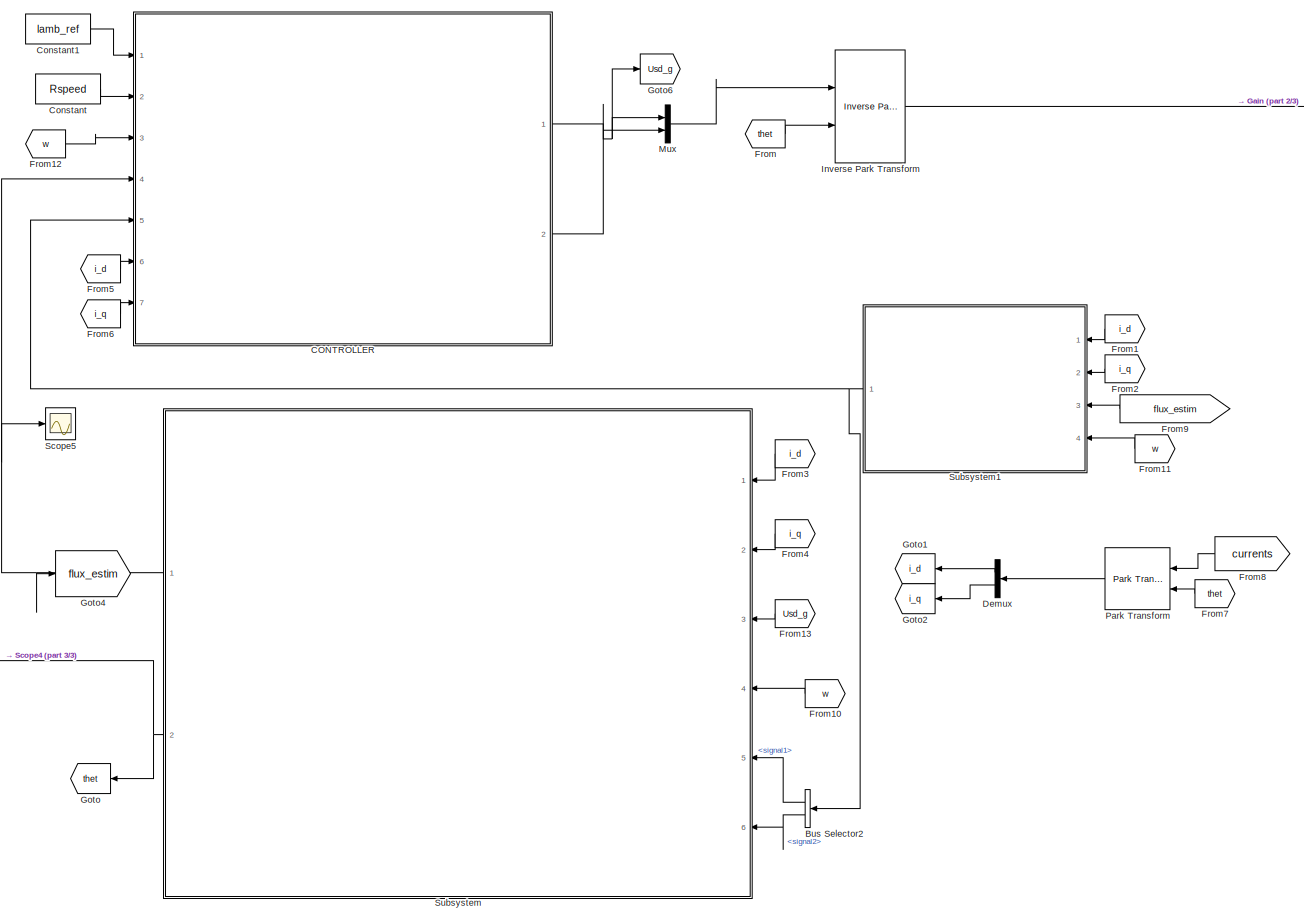
[diagram: root canvas - part 1/3, left side, full height]
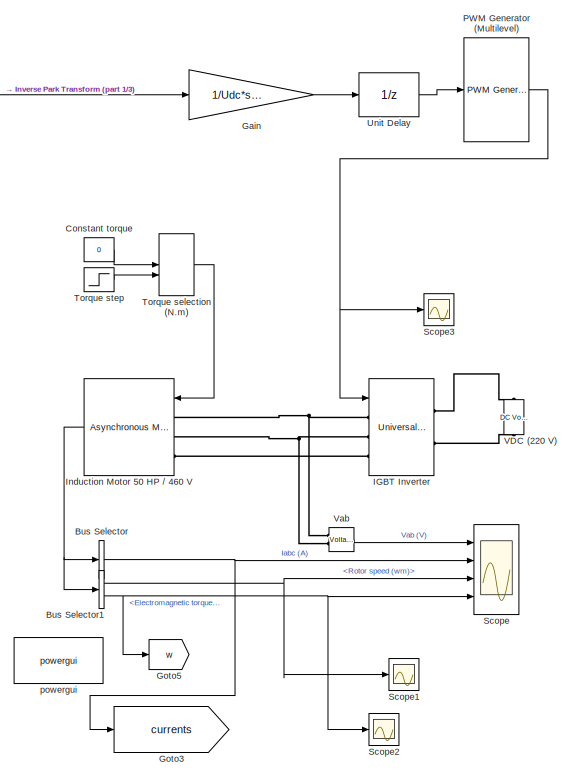
[diagram: root canvas - part 2/3, right side, full height]
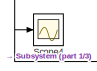
[diagram: root canvas - part 3/3, bottom left region]
MODEL slx_e085732e2093
KIND model
CONFIG AbsTol = auto
CONFIG EnableMultiTasking = off
CONFIG FixedStep = auto
CONFIG MaxStep = auto
CONFIG MinStep = auto
CONFIG RelTol = 1e-3
CONFIG SampleTimeConstraint = Unconstrained
CONFIG SolverName = VariableStepAuto
CONFIG StartTime = 0.0
CONFIG StopTime = 10
BLOCK [BusSelector] Bus Selector
  OutputAsBus = on
  OutputSignals = Stator measurements.Stator current is_a (A),Stator measurements.Stator current is_b (A),Stator measurements.Stator current is_c (A)
  Ports = [1, 1]
BLOCK [BusSelector] Bus Selector1
  OutputSignals = Mechanical.Rotor speed (wm),Mechanical.Electromagnetic torque Te (N*m)
  Ports = [1, 2]
BLOCK [BusSelector] Bus Selector2
  OutputSignals = signal1,signal2
  Ports = [1, 2]
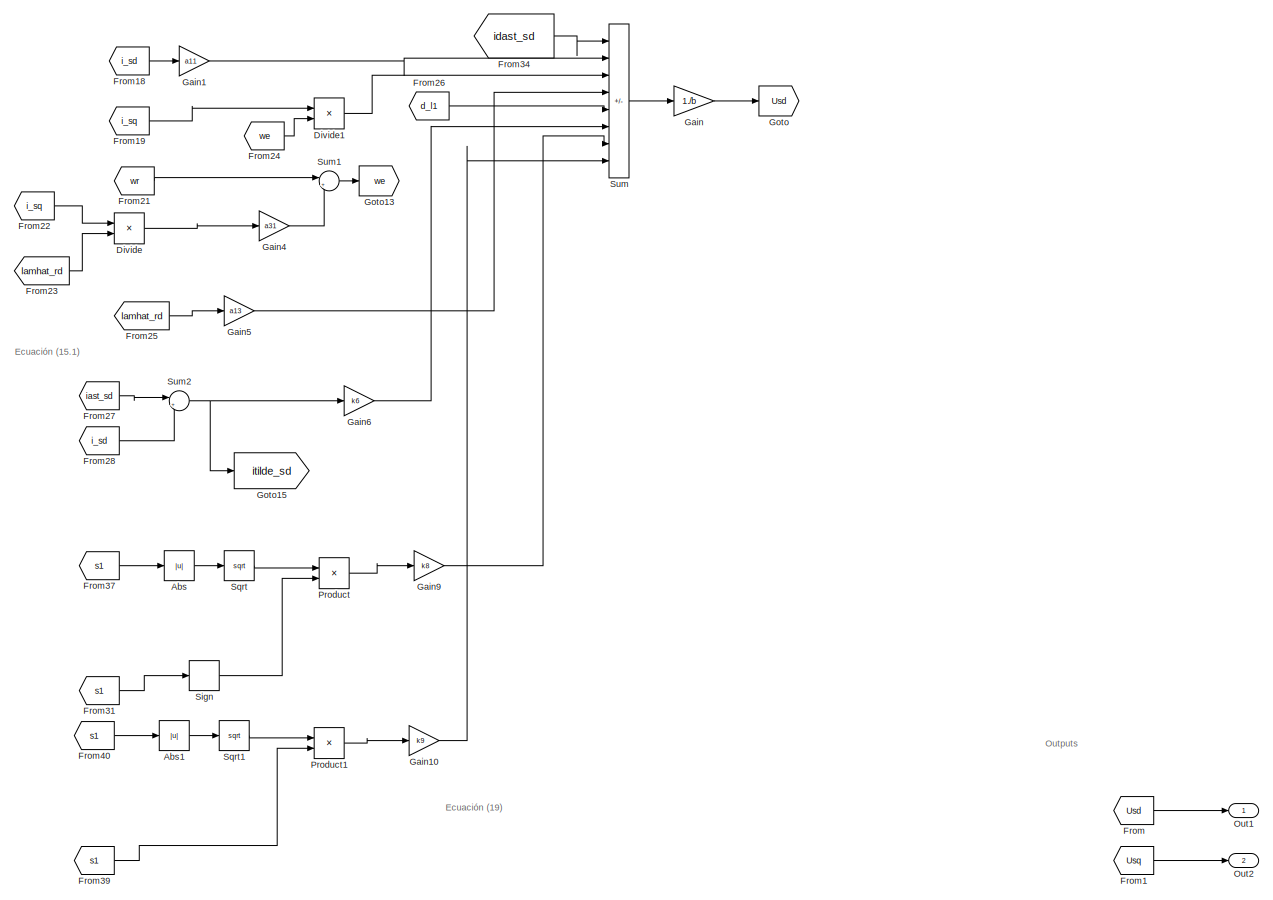
[diagram: CONTROLLER - part 1/4, top right region]
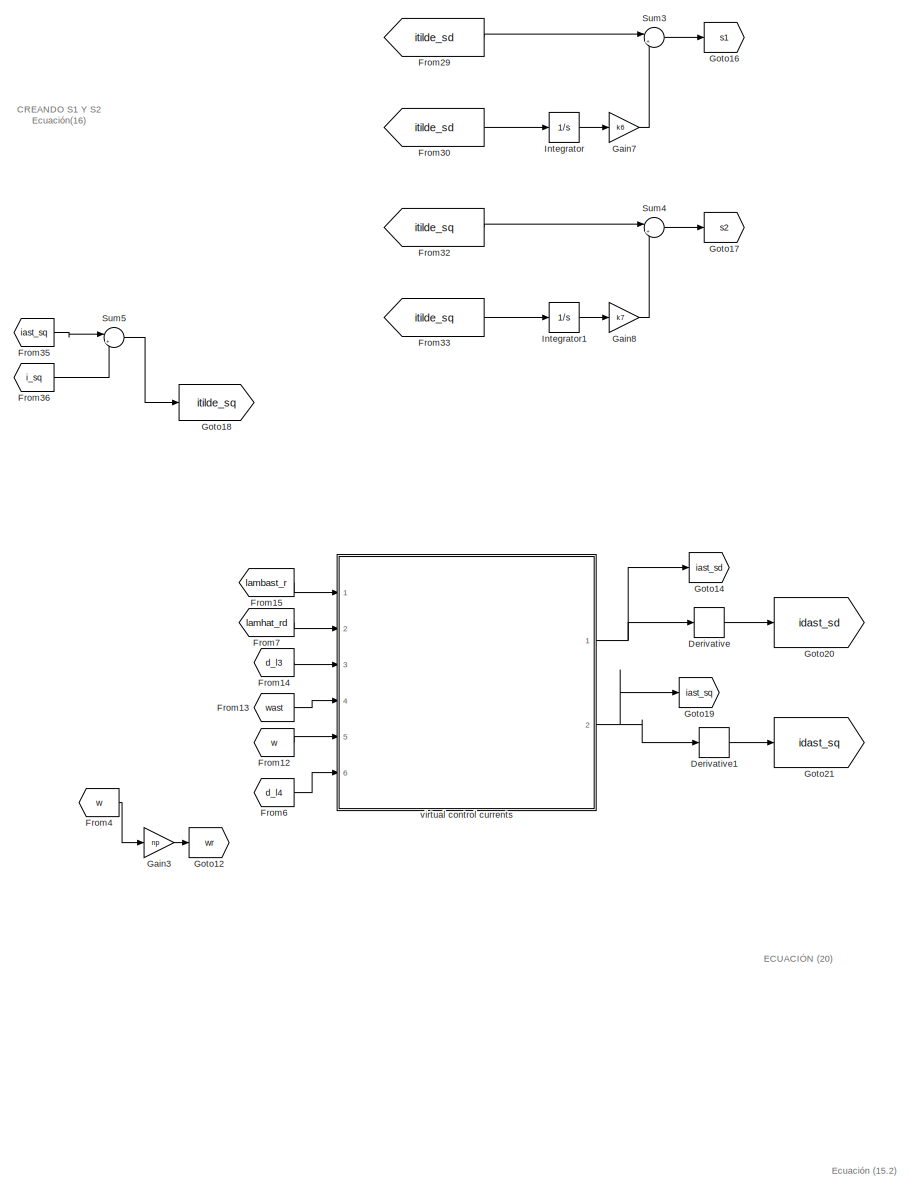
[diagram: CONTROLLER - part 2/4, central region]
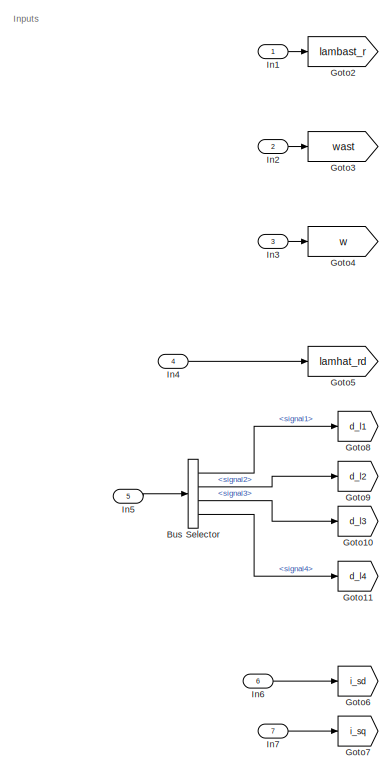
[diagram: CONTROLLER - part 3/4, middle left region]
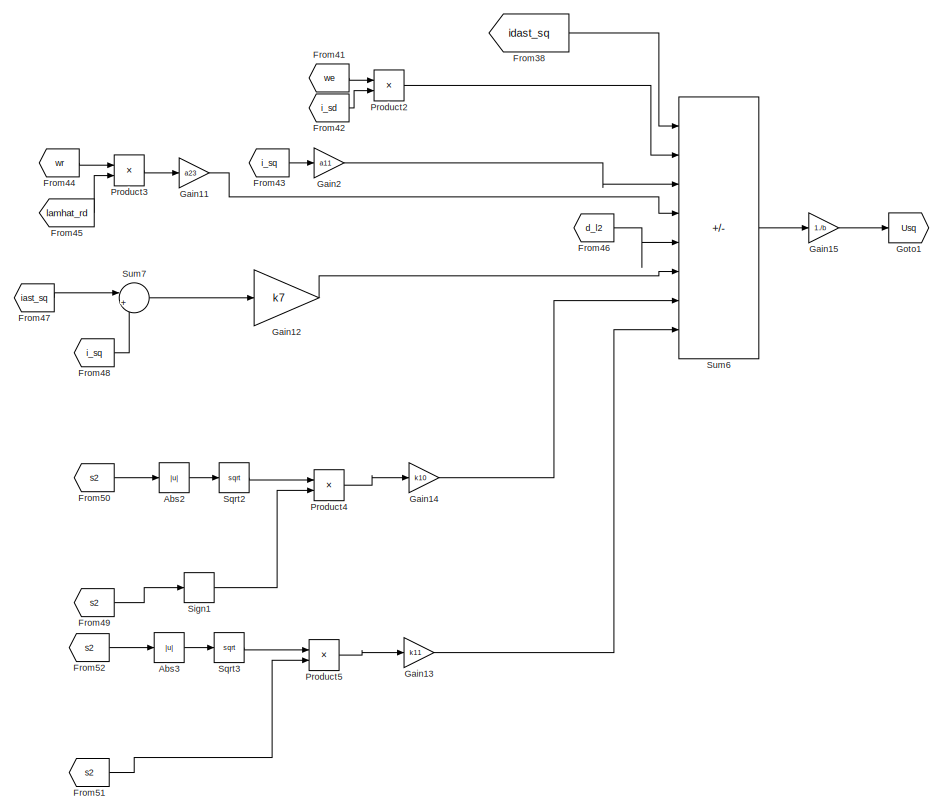
[diagram: CONTROLLER - part 4/4, bottom right region]
BLOCK [SubSystem] CONTROLLER
  Ports = [7, 2]
  RequestExecContextInheritance = off
  ShowPortLabels = none
BLOCK [Abs] CONTROLLER/Abs
  SaturateOnIntegerOverflow = off
BLOCK [Abs] CONTROLLER/Abs1
  SaturateOnIntegerOverflow = off
BLOCK [Abs] CONTROLLER/Abs2
  SaturateOnIntegerOverflow = off
BLOCK [Abs] CONTROLLER/Abs3
  SaturateOnIntegerOverflow = off
BLOCK [BusSelector] CONTROLLER/Bus Selector
  OutputSignals = signal1,signal2,signal3,signal4
  Ports = [1, 4]
BLOCK [Derivative] CONTROLLER/Derivative
BLOCK [Derivative] CONTROLLER/Derivative1
BLOCK [Product] CONTROLLER/Divide
  Inputs = */
  Ports = [2, 1]
BLOCK [Product] CONTROLLER/Divide1
  Inputs = **
  Ports = [2, 1]
BLOCK [From] CONTROLLER/From
  GotoTag = Usd
BLOCK [From] CONTROLLER/From1
  GotoTag = Usq
BLOCK [From] CONTROLLER/From12
  GotoTag = w
BLOCK [From] CONTROLLER/From13
  GotoTag = wast
BLOCK [From] CONTROLLER/From14
  GotoTag = d_l3
BLOCK [From] CONTROLLER/From15
  GotoTag = lambast_r
BLOCK [From] CONTROLLER/From18
  GotoTag = i_sd
BLOCK [From] CONTROLLER/From19
  GotoTag = i_sq
BLOCK [From] CONTROLLER/From21
  GotoTag = wr
BLOCK [From] CONTROLLER/From22
  GotoTag = i_sq
BLOCK [From] CONTROLLER/From23
  GotoTag = lamhat_rd
BLOCK [From] CONTROLLER/From24
  GotoTag = we
BLOCK [From] CONTROLLER/From25
  GotoTag = lamhat_rd
BLOCK [From] CONTROLLER/From26
  GotoTag = d_l1
BLOCK [From] CONTROLLER/From27
  GotoTag = iast_sd
BLOCK [From] CONTROLLER/From28
  GotoTag = i_sd
BLOCK [From] CONTROLLER/From29
  GotoTag = itilde_sd
BLOCK [From] CONTROLLER/From30
  GotoTag = itilde_sd
BLOCK [From] CONTROLLER/From31
  GotoTag = s1
BLOCK [From] CONTROLLER/From32
  GotoTag = itilde_sq
BLOCK [From] CONTROLLER/From33
  GotoTag = itilde_sq
BLOCK [From] CONTROLLER/From34
  GotoTag = idast_sd
BLOCK [From] CONTROLLER/From35
  GotoTag = iast_sq
BLOCK [From] CONTROLLER/From36
  GotoTag = i_sq
BLOCK [From] CONTROLLER/From37
  GotoTag = s1
BLOCK [From] CONTROLLER/From38
  GotoTag = idast_sq
BLOCK [From] CONTROLLER/From39
  GotoTag = s1
BLOCK [From] CONTROLLER/From4
  GotoTag = w
BLOCK [From] CONTROLLER/From40
  GotoTag = s1
BLOCK [From] CONTROLLER/From41
  GotoTag = we
BLOCK [From] CONTROLLER/From42
  GotoTag = i_sd
BLOCK [From] CONTROLLER/From43
  GotoTag = i_sq
BLOCK [From] CONTROLLER/From44
  GotoTag = wr
BLOCK [From] CONTROLLER/From45
  GotoTag = lamhat_rd
BLOCK [From] CONTROLLER/From46
  GotoTag = d_l2
BLOCK [From] CONTROLLER/From47
  GotoTag = iast_sq
BLOCK [From] CONTROLLER/From48
  GotoTag = i_sq
BLOCK [From] CONTROLLER/From49
  GotoTag = s2
  NameLocation = top
BLOCK [From] CONTROLLER/From50
  GotoTag = s2
BLOCK [From] CONTROLLER/From51
  GotoTag = s2
BLOCK [From] CONTROLLER/From52
  GotoTag = s2
BLOCK [From] CONTROLLER/From6
  GotoTag = d_l4
BLOCK [From] CONTROLLER/From7
  GotoTag = lamhat_rd
BLOCK [Gain] CONTROLLER/Gain
  Gain = 1./b
BLOCK [Gain] CONTROLLER/Gain1
  Gain = a11
BLOCK [Gain] CONTROLLER/Gain10
  Gain = k9
BLOCK [Gain] CONTROLLER/Gain11
  Gain = a23
BLOCK [Gain] CONTROLLER/Gain12
  Gain = k7
BLOCK [Gain] CONTROLLER/Gain13
  Gain = k11
BLOCK [Gain] CONTROLLER/Gain14
  Gain = k10
BLOCK [Gain] CONTROLLER/Gain15
  Gain = 1./b
BLOCK [Gain] CONTROLLER/Gain2
  Gain = a11
BLOCK [Gain] CONTROLLER/Gain3
  Gain = np
BLOCK [Gain] CONTROLLER/Gain4
  Gain = a31
BLOCK [Gain] CONTROLLER/Gain5
  Gain = a13
BLOCK [Gain] CONTROLLER/Gain6
  Gain = k6
BLOCK [Gain] CONTROLLER/Gain7
  Gain = k6
BLOCK [Gain] CONTROLLER/Gain8
  Gain = k7
BLOCK [Gain] CONTROLLER/Gain9
  Gain = k8
BLOCK [Goto] CONTROLLER/Goto
  GotoTag = Usd
BLOCK [Goto] CONTROLLER/Goto1
  GotoTag = Usq
BLOCK [Goto] CONTROLLER/Goto10
  GotoTag = d_l3
BLOCK [Goto] CONTROLLER/Goto11
  GotoTag = d_l4
BLOCK [Goto] CONTROLLER/Goto12
  GotoTag = wr
BLOCK [Goto] CONTROLLER/Goto13
  GotoTag = we
BLOCK [Goto] CONTROLLER/Goto14
  GotoTag = iast_sd
BLOCK [Goto] CONTROLLER/Goto15
  GotoTag = itilde_sd
BLOCK [Goto] CONTROLLER/Goto16
  GotoTag = s1
BLOCK [Goto] CONTROLLER/Goto17
  GotoTag = s2
BLOCK [Goto] CONTROLLER/Goto18
  GotoTag = itilde_sq
BLOCK [Goto] CONTROLLER/Goto19
  GotoTag = iast_sq
BLOCK [Goto] CONTROLLER/Goto2
  GotoTag = lambast_r
BLOCK [Goto] CONTROLLER/Goto20
  GotoTag = idast_sd
BLOCK [Goto] CONTROLLER/Goto21
  GotoTag = idast_sq
BLOCK [Goto] CONTROLLER/Goto3
  GotoTag = wast
BLOCK [Goto] CONTROLLER/Goto4
  GotoTag = w
BLOCK [Goto] CONTROLLER/Goto5
  GotoTag = lamhat_rd
BLOCK [Goto] CONTROLLER/Goto6
  GotoTag = i_sd
BLOCK [Goto] CONTROLLER/Goto7
  GotoTag = i_sq
BLOCK [Goto] CONTROLLER/Goto8
  GotoTag = d_l1
BLOCK [Goto] CONTROLLER/Goto9
  GotoTag = d_l2
BLOCK [Inport] CONTROLLER/In1
BLOCK [Inport] CONTROLLER/In2
  Port = 2
BLOCK [Inport] CONTROLLER/In3
  Port = 3
BLOCK [Inport] CONTROLLER/In4
  Port = 4
BLOCK [Inport] CONTROLLER/In5
  Port = 5
BLOCK [Inport] CONTROLLER/In6
  Port = 6
BLOCK [Inport] CONTROLLER/In7
  Port = 7
BLOCK [Integrator] CONTROLLER/Integrator
  Ports = [1, 1]
BLOCK [Integrator] CONTROLLER/Integrator1
  Ports = [1, 1]
BLOCK [Outport] CONTROLLER/Out1
BLOCK [Outport] CONTROLLER/Out2
  Port = 2
BLOCK [Product] CONTROLLER/Product
  Ports = [2, 1]
BLOCK [Product] CONTROLLER/Product1
  Ports = [2, 1]
BLOCK [Product] CONTROLLER/Product2
  Ports = [2, 1]
BLOCK [Product] CONTROLLER/Product3
  Ports = [2, 1]
BLOCK [Product] CONTROLLER/Product4
  Ports = [2, 1]
BLOCK [Product] CONTROLLER/Product5
  Ports = [2, 1]
BLOCK [Signum] CONTROLLER/Sign
BLOCK [Signum] CONTROLLER/Sign1
BLOCK [Sqrt] CONTROLLER/Sqrt
BLOCK [Sqrt] CONTROLLER/Sqrt1
BLOCK [Sqrt] CONTROLLER/Sqrt2
BLOCK [Sqrt] CONTROLLER/Sqrt3
BLOCK [Sum] CONTROLLER/Sum
  IconShape = rectangular
  Inputs = |+|----|+++|
  Ports = [8, 1]
BLOCK [Sum] CONTROLLER/Sum1
  Inputs = |++
  Ports = [2, 1]
BLOCK [Sum] CONTROLLER/Sum2
  Inputs = |+-
  Ports = [2, 1]
BLOCK [Sum] CONTROLLER/Sum3
  Inputs = |++
  Ports = [2, 1]
BLOCK [Sum] CONTROLLER/Sum4
  Inputs = |++
  Ports = [2, 1]
BLOCK [Sum] CONTROLLER/Sum5
  Inputs = |+-
  Ports = [2, 1]
BLOCK [Sum] CONTROLLER/Sum6
  IconShape = rectangular
  Inputs = |++|-|+|-|+++
  Ports = [8, 1]
BLOCK [Sum] CONTROLLER/Sum7
  Inputs = |+-
  Ports = [2, 1]
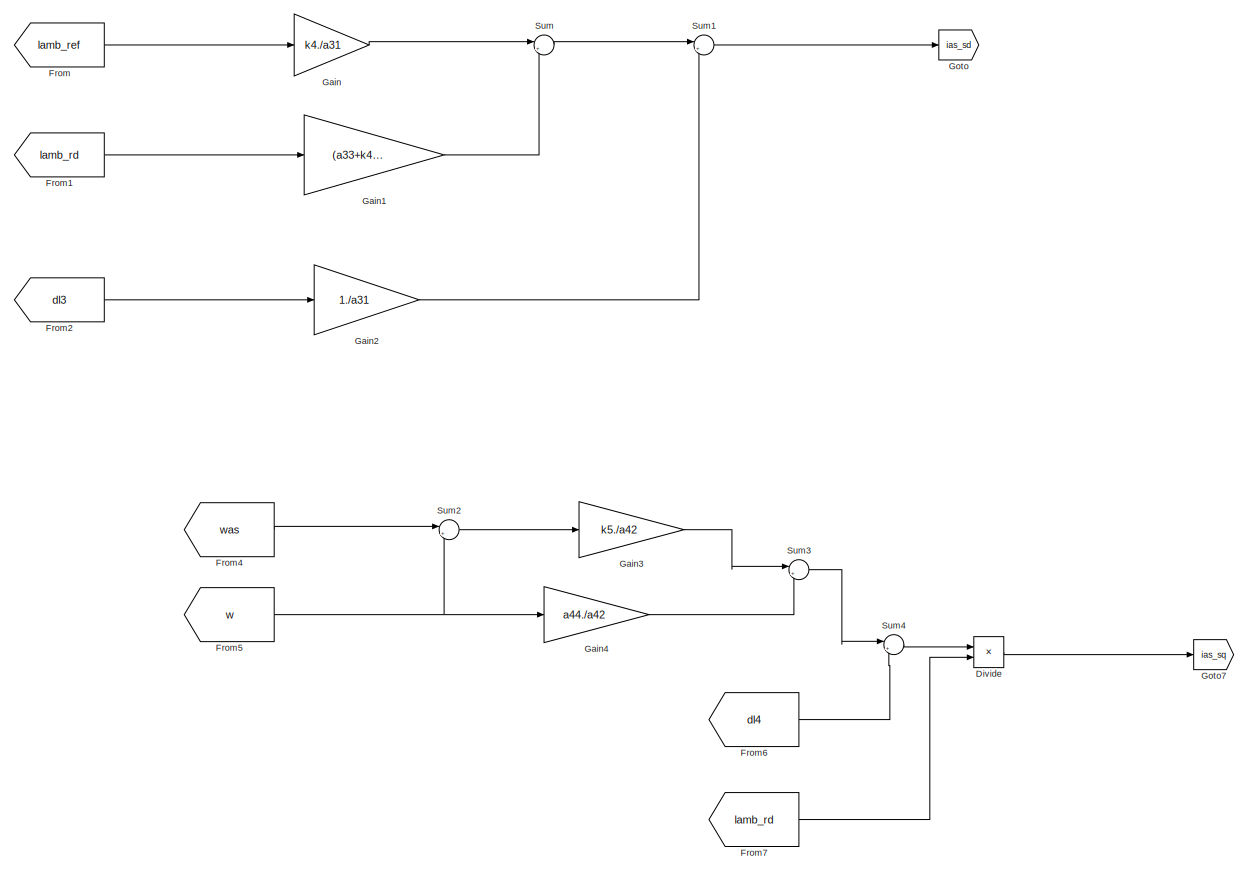
[diagram: CONTROLLER/virtual control currents  - part 1/3, center side, full height]
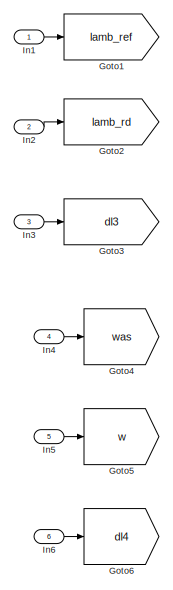
[diagram: CONTROLLER/virtual control currents  - part 2/3, middle left region]
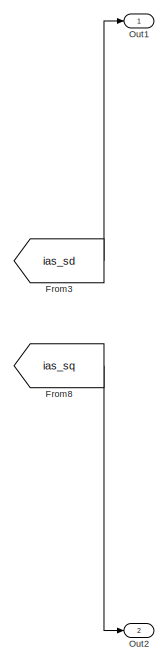
[diagram: CONTROLLER/virtual control currents  - part 3/3, right side, full height]
BLOCK [SubSystem] CONTROLLER/virtual control currents 
  Ports = [6, 2]
  RequestExecContextInheritance = off
  ShowPortLabels = none
BLOCK [Product] CONTROLLER/virtual control currents /Divide
  Inputs = */
  Ports = [2, 1]
  RndMeth = Nearest
BLOCK [From] CONTROLLER/virtual control currents /From
  GotoTag = lamb_ref
  IconDisplay = Tag and signal name
BLOCK [From] CONTROLLER/virtual control currents /From1
  GotoTag = lamb_rd
  IconDisplay = Tag and signal name
BLOCK [From] CONTROLLER/virtual control currents /From2
  GotoTag = dl3
  IconDisplay = Tag and signal name
BLOCK [From] CONTROLLER/virtual control currents /From3
  GotoTag = ias_sd
BLOCK [From] CONTROLLER/virtual control currents /From4
  GotoTag = was
BLOCK [From] CONTROLLER/virtual control currents /From5
  GotoTag = w
BLOCK [From] CONTROLLER/virtual control currents /From6
  GotoTag = dl4
BLOCK [From] CONTROLLER/virtual control currents /From7
  GotoTag = lamb_rd
BLOCK [From] CONTROLLER/virtual control currents /From8
  GotoTag = ias_sq
BLOCK [Gain] CONTROLLER/virtual control currents /Gain
  Gain = k4./a31
BLOCK [Gain] CONTROLLER/virtual control currents /Gain1
  Gain = (a33+k4)./a31
BLOCK [Gain] CONTROLLER/virtual control currents /Gain2
  Gain = 1./a31
BLOCK [Gain] CONTROLLER/virtual control currents /Gain3
  Gain = k5./a42
BLOCK [Gain] CONTROLLER/virtual control currents /Gain4
  Gain = a44./a42
BLOCK [Goto] CONTROLLER/virtual control currents /Goto
  GotoTag = ias_sd
BLOCK [Goto] CONTROLLER/virtual control currents /Goto1
  GotoTag = lamb_ref
BLOCK [Goto] CONTROLLER/virtual control currents /Goto2
  GotoTag = lamb_rd
BLOCK [Goto] CONTROLLER/virtual control currents /Goto3
  GotoTag = dl3
BLOCK [Goto] CONTROLLER/virtual control currents /Goto4
  GotoTag = was
BLOCK [Goto] CONTROLLER/virtual control currents /Goto5
  GotoTag = w
BLOCK [Goto] CONTROLLER/virtual control currents /Goto6
  GotoTag = dl4
BLOCK [Goto] CONTROLLER/virtual control currents /Goto7
  GotoTag = ias_sq
BLOCK [Inport] CONTROLLER/virtual control currents /In1
BLOCK [Inport] CONTROLLER/virtual control currents /In2
  Port = 2
BLOCK [Inport] CONTROLLER/virtual control currents /In3
  Port = 3
BLOCK [Inport] CONTROLLER/virtual control currents /In4
  Port = 4
BLOCK [Inport] CONTROLLER/virtual control currents /In5
  Port = 5
BLOCK [Inport] CONTROLLER/virtual control currents /In6
  Port = 6
BLOCK [Outport] CONTROLLER/virtual control currents /Out1
BLOCK [Outport] CONTROLLER/virtual control currents /Out2
  Port = 2
BLOCK [Sum] CONTROLLER/virtual control currents /Sum
  Inputs = |+-
  Ports = [2, 1]
BLOCK [Sum] CONTROLLER/virtual control currents /Sum1
  Inputs = |+-
  Ports = [2, 1]
BLOCK [Sum] CONTROLLER/virtual control currents /Sum2
  Inputs = |+-
  Ports = [2, 1]
BLOCK [Sum] CONTROLLER/virtual control currents /Sum3
  Inputs = |+-
  Ports = [2, 1]
BLOCK [Sum] CONTROLLER/virtual control currents /Sum4
  Inputs = |+-
  Ports = [2, 1]
BLOCK [Constant] Constant
  Value = Rspeed
BLOCK [Constant] Constant torque
  NameLocation = top
  Value = 0
BLOCK [Constant] Constant1
  Value = lamb_ref
BLOCK [Demux] Demux
  Outputs = 2
  Ports = [1, 2]
BLOCK [From] From
  GotoTag = thet
BLOCK [From] From1
  GotoTag = i_d
BLOCK [From] From10
  GotoTag = w
BLOCK [From] From11
  GotoTag = w
BLOCK [From] From12
  GotoTag = w
BLOCK [From] From13
  GotoTag = Usd_g
BLOCK [From] From2
  GotoTag = i_q
BLOCK [From] From3
  GotoTag = i_d
BLOCK [From] From4
  GotoTag = i_q
BLOCK [From] From5
  GotoTag = i_d
BLOCK [From] From6
  GotoTag = i_q
BLOCK [From] From7
  GotoTag = thet
BLOCK [From] From8
  GotoTag = currents
BLOCK [From] From9
  GotoTag = flux_estim
BLOCK [Gain] Gain
  Gain = 1/Udc*sqrt(3)
BLOCK [Goto] Goto
  GotoTag = thet
BLOCK [Goto] Goto1
  GotoTag = i_d
BLOCK [Goto] Goto2
  GotoTag = i_q
BLOCK [Goto] Goto3
  GotoTag = currents
BLOCK [Goto] Goto4
  GotoTag = flux_estim
BLOCK [Goto] Goto5
  GotoTag = w
BLOCK [Goto] Goto6
  GotoTag = Usd_g
BLOCK [Reference] IGBT Inverter  REF=spsUniversalBridgeLib/Universal Bridge
  AttributesFormatString = \n
  Ports = [1, 0, 0, 0, 0, 3, 2]
  SourceBlock = spsUniversalBridgeLib/Universal Bridge
  SourceProductBaseCode = PS
  SourceType = Universal Bridge
BLOCK [Reference] Induction Motor 50 HP // 460 V  REF=spsAsynchronousMachineSIUnitsLib/Asynchronous Machine
SI Units
  AttributesFormatString = \n
  Ports = [1, 1, 0, 0, 0, 3]
  SourceBlock = spsAsynchronousMachineSIUnitsLib/Asynchronous Machine\nSI Units
  SourceProductBaseCode = PS
  SourceType = Asynchronous Machine
BLOCK [Reference] Inverse Park Transform  REF=eeTransforms/Inverse
Park Transform
  Ports = [2, 1]
  SourceBlock = eeTransforms/Inverse\nPark Transform
  SourceProductBaseCode = PS
  SourceType = Inverse Park Transform
BLOCK [Mux] Mux
  DisplayOption = bar
  Inputs = 2
  Ports = [2, 1]
BLOCK [Reference] PWM Generator (Multilevel)  REF=spsPWMGeneratorMultilevelLib/PWM Generator
(Multilevel)
  Ports = [1, 1]
  SourceBlock = spsPWMGeneratorMultilevelLib/PWM Generator\n(Multilevel)
  SourceProductBaseCode = PS
  SourceType = PWM Generator (Multilevel)
BLOCK [Reference] Park Transform  REF=eeTransforms/Park Transform
  Ports = [2, 1]
  SourceBlock = eeTransforms/Park Transform
  SourceProductBaseCode = PS
  SourceType = Park Transform
BLOCK [Scope] Scope
  Floating = off
  NameLocation = top
  NumInputPorts = 4
  Ports = [4]
  ScopeSpecificationString = Simulink.scopes.TimeScopeBlockCfg('CurrentConfiguration', extmgr.ConfigurationSet(extmgr.Configuration('Core','General UI',true),extmgr.Configuration('Core','Source UI',true),extmgr.Configuration('Sources','WiredSimulink',true,'DataLoggingSaveFormat','Array','DataLoggingDecimation','1','DataLoggingDecimateData',true),extmgr.Configuration('Visuals','Time Domain',true,'SerializedDisplays',{struct('M...<+3692ch>
BLOCK [Scope] Scope1
  Floating = off
  NumInputPorts = 1
  Ports = [1]
  ScopeSpecificationString = Simulink.scopes.TimeScopeBlockCfg('CurrentConfiguration', extmgr.ConfigurationSet(extmgr.Configuration('Core','General UI',true),extmgr.Configuration('Core','Source UI',true),extmgr.Configuration('Sources','WiredSimulink',true,'DataLoggingVariableName','ScopeData1'),extmgr.Configuration('Visuals','Time Domain',true,'SerializedDisplays',{struct('MinYLimReal','-77.33837','MaxYLimReal','71.3232','YLa...<+1408ch>
BLOCK [Scope] Scope2
  Floating = off
  NumInputPorts = 1
  Ports = [1]
  ScopeSpecificationString = Simulink.scopes.TimeScopeBlockCfg('CurrentConfiguration', extmgr.ConfigurationSet(extmgr.Configuration('Core','General UI',true),extmgr.Configuration('Core','Source UI',true),extmgr.Configuration('Sources','WiredSimulink',true,'DataLoggingVariableName','ScopeData2'),extmgr.Configuration('Visuals','Time Domain',true,'SerializedDisplays',{struct('MinYLimReal','-28.82989','MaxYLimReal','32.11786','YL...<+1425ch>
BLOCK [Scope] Scope3
  Floating = off
  NumInputPorts = 1
  Ports = [1]
  ScopeSpecificationString = Simulink.scopes.TimeScopeBlockCfg('CurrentConfiguration', extmgr.ConfigurationSet(extmgr.Configuration('Core','General UI',true),extmgr.Configuration('Core','Source UI',true),extmgr.Configuration('Sources','WiredSimulink',true,'DataLoggingVariableName','ScopeData3'),extmgr.Configuration('Visuals','Time Domain',true,'SerializedDisplays',{struct('MinYLimReal','-0.125','MaxYLimReal','1.125','YLabelRe...<+1934ch>
BLOCK [Scope] Scope4
  Floating = off
  NumInputPorts = 1
  Ports = [1]
  ScopeSpecificationString = Simulink.scopes.TimeScopeBlockCfg('CurrentConfiguration', extmgr.ConfigurationSet(extmgr.Configuration('Core','General UI',true),extmgr.Configuration('Core','Source UI',true),extmgr.Configuration('Sources','WiredSimulink',true,'DataLoggingVariableName','ScopeData1'),extmgr.Configuration('Visuals','Time Domain',true,'SerializedDisplays',{struct('MinYLimReal','-0.125','MaxYLimReal','1.125','YLabelRe...<+1780ch>
BLOCK [Scope] Scope5
  Floating = off
  NumInputPorts = 1
  Ports = [1]
  ScopeSpecificationString = Simulink.scopes.TimeScopeBlockCfg('CurrentConfiguration', extmgr.ConfigurationSet(extmgr.Configuration('Core','General UI',true),extmgr.Configuration('Core','Source UI',true),extmgr.Configuration('Sources','WiredSimulink',true,'DataLoggingVariableName','ScopeData1'),extmgr.Configuration('Visuals','Time Domain',true),extmgr.Configuration('Tools','Plot Navigation',true),extmgr.Configuration('Tools',...<+40ch>
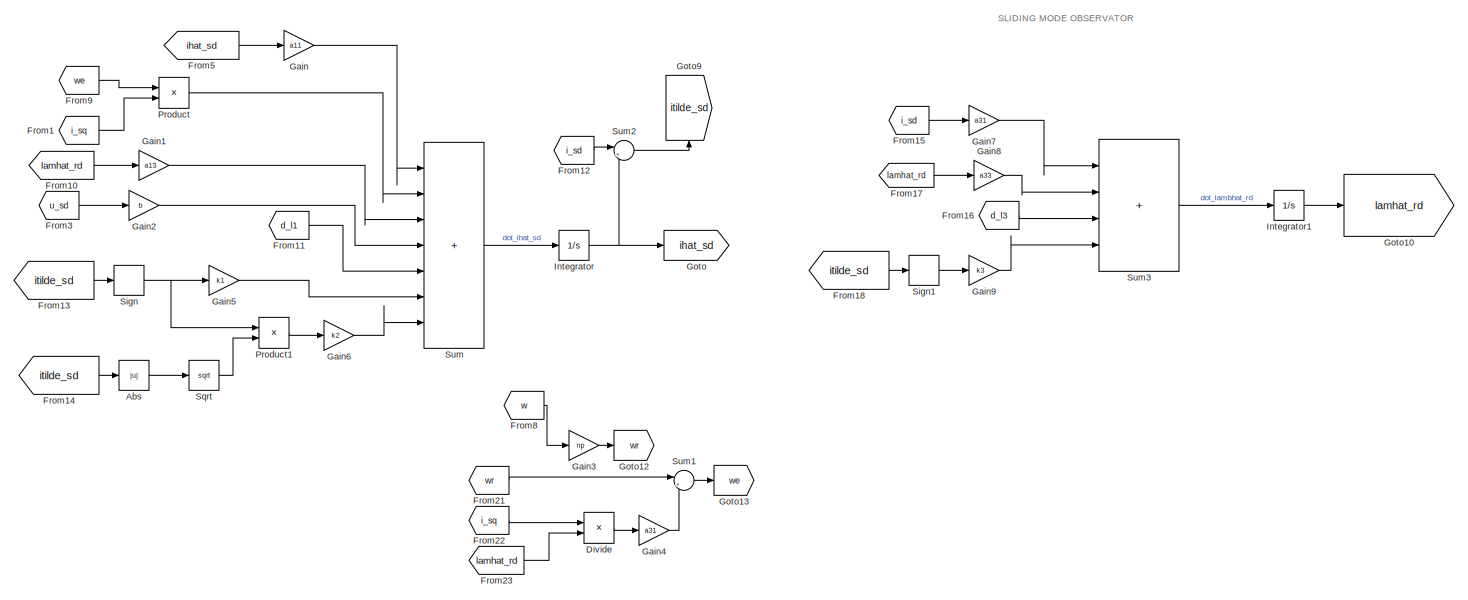
[diagram: Subsystem - part 1/3, top center region]
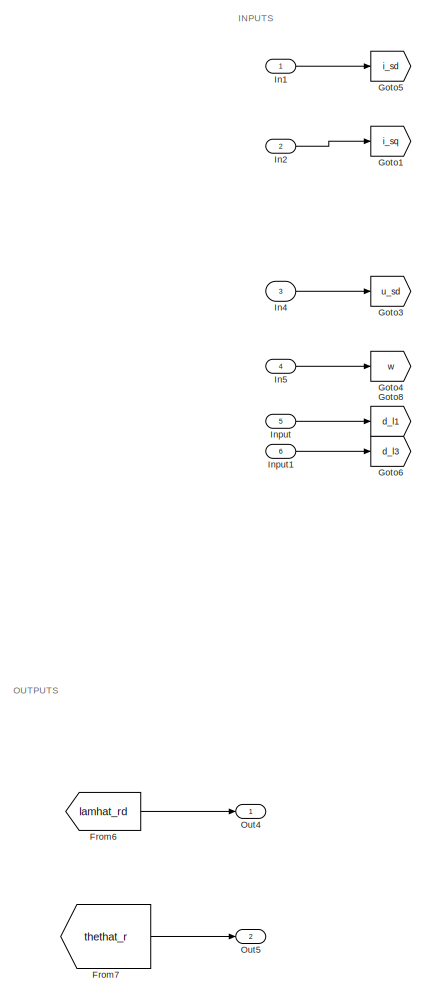
[diagram: Subsystem - part 2/3, left side, full height]
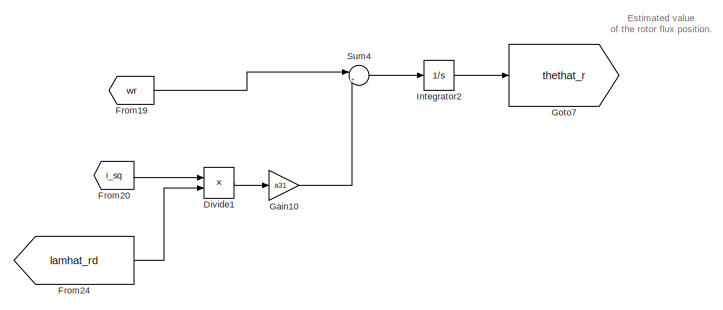
[diagram: Subsystem - part 3/3, bottom center region]
BLOCK [SubSystem] Subsystem
  Ports = [6, 2]
  RequestExecContextInheritance = off
  ShowPortLabels = none
BLOCK [Abs] Subsystem/Abs
  SaturateOnIntegerOverflow = off
BLOCK [Product] Subsystem/Divide
  Inputs = */
  Ports = [2, 1]
BLOCK [Product] Subsystem/Divide1
  Inputs = */
  Ports = [2, 1]
BLOCK [From] Subsystem/From1
  GotoTag = i_sq
BLOCK [From] Subsystem/From10
  GotoTag = lamhat_rd
BLOCK [From] Subsystem/From11
  GotoTag = d_l1
BLOCK [From] Subsystem/From12
  GotoTag = i_sd
BLOCK [From] Subsystem/From13
  GotoTag = itilde_sd
BLOCK [From] Subsystem/From14
  GotoTag = itilde_sd
BLOCK [From] Subsystem/From15
  GotoTag = i_sd
BLOCK [From] Subsystem/From16
  GotoTag = d_l3
BLOCK [From] Subsystem/From17
  GotoTag = lamhat_rd
BLOCK [From] Subsystem/From18
  GotoTag = itilde_sd
BLOCK [From] Subsystem/From19
  GotoTag = wr
BLOCK [From] Subsystem/From20
  GotoTag = i_sq
BLOCK [From] Subsystem/From21
  GotoTag = wr
BLOCK [From] Subsystem/From22
  GotoTag = i_sq
BLOCK [From] Subsystem/From23
  GotoTag = lamhat_rd
BLOCK [From] Subsystem/From24
  GotoTag = lamhat_rd
BLOCK [From] Subsystem/From3
  GotoTag = u_sd
BLOCK [From] Subsystem/From5
  GotoTag = ihat_sd
BLOCK [From] Subsystem/From6
  GotoTag = lamhat_rd
BLOCK [From] Subsystem/From7
  GotoTag = thethat_r
BLOCK [From] Subsystem/From8
  GotoTag = w
BLOCK [From] Subsystem/From9
  GotoTag = we
BLOCK [Gain] Subsystem/Gain
  Gain = a11
BLOCK [Gain] Subsystem/Gain1
  Gain = a13
BLOCK [Gain] Subsystem/Gain10
  Gain = a31
BLOCK [Gain] Subsystem/Gain2
  Gain = b
BLOCK [Gain] Subsystem/Gain3
  Gain = np
BLOCK [Gain] Subsystem/Gain4
  Gain = a31
BLOCK [Gain] Subsystem/Gain5
  Gain = k1
BLOCK [Gain] Subsystem/Gain6
  Gain = k2
BLOCK [Gain] Subsystem/Gain7
  Gain = a31
BLOCK [Gain] Subsystem/Gain8
  Gain = a33
BLOCK [Gain] Subsystem/Gain9
  Gain = k3
BLOCK [Goto] Subsystem/Goto
  GotoTag = ihat_sd
BLOCK [Goto] Subsystem/Goto1
  GotoTag = i_sq
BLOCK [Goto] Subsystem/Goto10
  GotoTag = lamhat_rd
BLOCK [Goto] Subsystem/Goto12
  GotoTag = wr
BLOCK [Goto] Subsystem/Goto13
  GotoTag = we
BLOCK [Goto] Subsystem/Goto3
  GotoTag = u_sd
BLOCK [Goto] Subsystem/Goto4
  GotoTag = w
BLOCK [Goto] Subsystem/Goto5
  GotoTag = i_sd
BLOCK [Goto] Subsystem/Goto6
  GotoTag = d_l3
BLOCK [Goto] Subsystem/Goto7
  GotoTag = thethat_r
BLOCK [Goto] Subsystem/Goto8
  GotoTag = d_l1
BLOCK [Goto] Subsystem/Goto9
  GotoTag = itilde_sd
  NameLocation = right
BLOCK [Inport] Subsystem/In1
BLOCK [Inport] Subsystem/In2
  Port = 2
BLOCK [Inport] Subsystem/In4
  Port = 3
BLOCK [Inport] Subsystem/In5
  Port = 4
BLOCK [Inport] Subsystem/Input
  Port = 5
BLOCK [Inport] Subsystem/Input1
  Port = 6
BLOCK [Integrator] Subsystem/Integrator
  Ports = [1, 1]
BLOCK [Integrator] Subsystem/Integrator1
  InitialCondition = 0.2
  Ports = [1, 1]
BLOCK [Integrator] Subsystem/Integrator2
  Ports = [1, 1]
BLOCK [Outport] Subsystem/Out4
BLOCK [Outport] Subsystem/Out5
  Port = 2
BLOCK [Product] Subsystem/Product
  Ports = [2, 1]
BLOCK [Product] Subsystem/Product1
  Ports = [2, 1]
BLOCK [Signum] Subsystem/Sign
BLOCK [Signum] Subsystem/Sign1
BLOCK [Sqrt] Subsystem/Sqrt
BLOCK [Sum] Subsystem/Sum
  IconShape = rectangular
  Inputs = |+++++++|
  Ports = [7, 1]
BLOCK [Sum] Subsystem/Sum1
  Inputs = |++
  Ports = [2, 1]
BLOCK [Sum] Subsystem/Sum2
  Inputs = |+-
  Ports = [2, 1]
BLOCK [Sum] Subsystem/Sum3
  IconShape = rectangular
  Inputs = |++++|
  Ports = [4, 1]
BLOCK [Sum] Subsystem/Sum4
  Inputs = |++
  Ports = [2, 1]
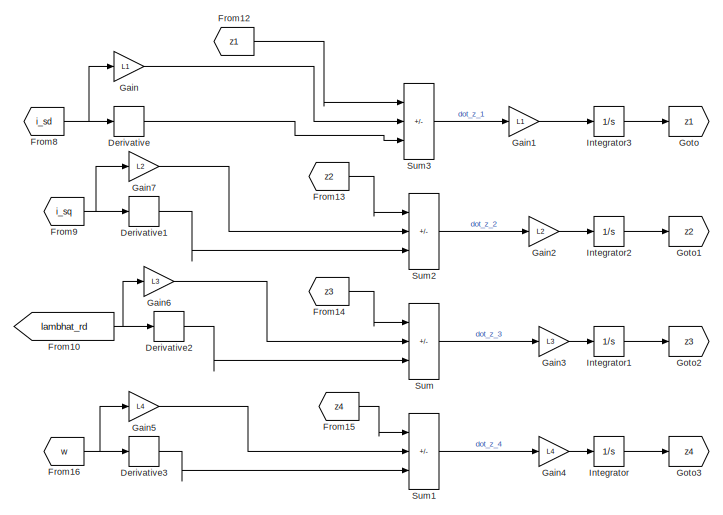
[diagram: Subsystem1 - part 1/2, top left region]
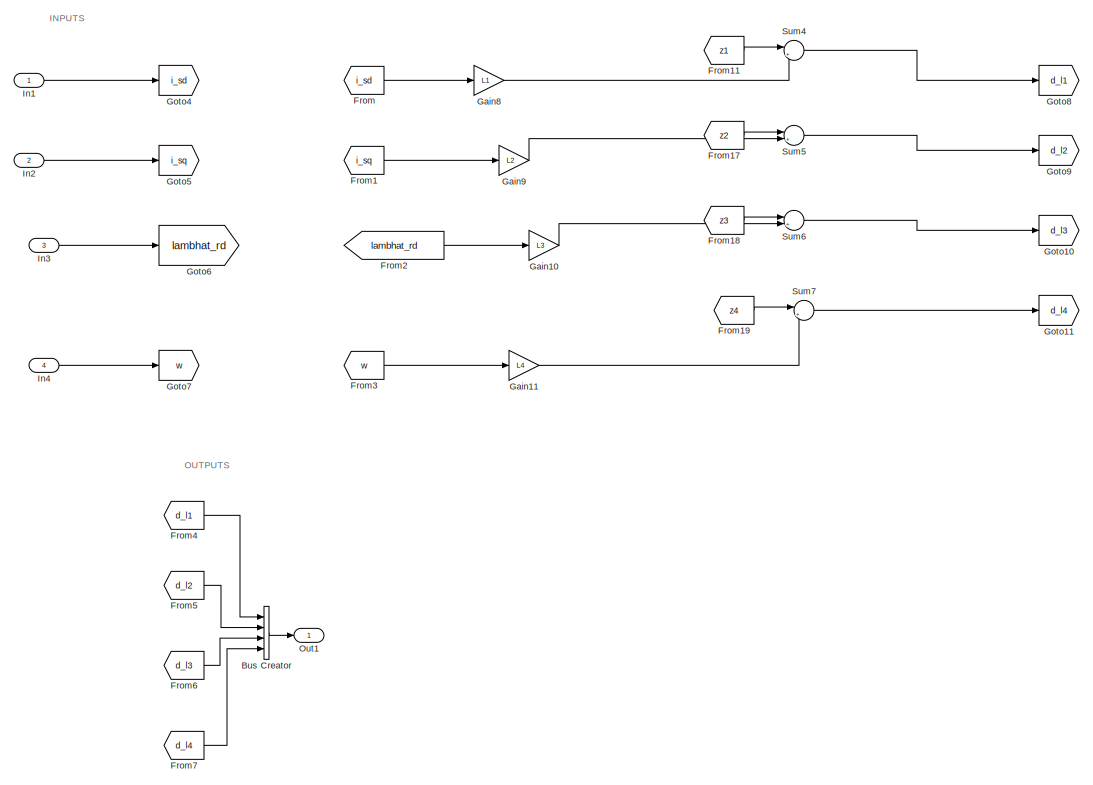
[diagram: Subsystem1 - part 2/2, full width, bottom band]
BLOCK [SubSystem] Subsystem1
  Ports = [4, 1]
  RequestExecContextInheritance = off
  ShowPortLabels = none
BLOCK [BusCreator] Subsystem1/Bus Creator
  DisplayOption = bar
  InheritFromInputs = on
  Inputs = 4
  Ports = [4, 1]
BLOCK [Derivative] Subsystem1/Derivative
BLOCK [Derivative] Subsystem1/Derivative1
BLOCK [Derivative] Subsystem1/Derivative2
BLOCK [Derivative] Subsystem1/Derivative3
BLOCK [From] Subsystem1/From
  GotoTag = i_sd
BLOCK [From] Subsystem1/From1
  GotoTag = i_sq
BLOCK [From] Subsystem1/From10
  GotoTag = lambhat_rd
BLOCK [From] Subsystem1/From11
  GotoTag = z1
BLOCK [From] Subsystem1/From12
  GotoTag = z1
BLOCK [From] Subsystem1/From13
  GotoTag = z2
BLOCK [From] Subsystem1/From14
  GotoTag = z3
BLOCK [From] Subsystem1/From15
  GotoTag = z4
BLOCK [From] Subsystem1/From16
  GotoTag = w
BLOCK [From] Subsystem1/From17
  GotoTag = z2
BLOCK [From] Subsystem1/From18
  GotoTag = z3
BLOCK [From] Subsystem1/From19
  GotoTag = z4
BLOCK [From] Subsystem1/From2
  GotoTag = lambhat_rd
BLOCK [From] Subsystem1/From3
  GotoTag = w
BLOCK [From] Subsystem1/From4
  GotoTag = d_l1
BLOCK [From] Subsystem1/From5
  GotoTag = d_l2
BLOCK [From] Subsystem1/From6
  GotoTag = d_l3
BLOCK [From] Subsystem1/From7
  GotoTag = d_l4
BLOCK [From] Subsystem1/From8
  GotoTag = i_sd
BLOCK [From] Subsystem1/From9
  GotoTag = i_sq
BLOCK [Gain] Subsystem1/Gain
  Gain = L1
BLOCK [Gain] Subsystem1/Gain1
  Gain = L1
BLOCK [Gain] Subsystem1/Gain10
  Gain = L3
BLOCK [Gain] Subsystem1/Gain11
  Gain = L4
BLOCK [Gain] Subsystem1/Gain2
  Gain = L2
BLOCK [Gain] Subsystem1/Gain3
  Gain = L3
BLOCK [Gain] Subsystem1/Gain4
  Gain = L4
BLOCK [Gain] Subsystem1/Gain5
  Gain = L4
BLOCK [Gain] Subsystem1/Gain6
  Gain = L3
BLOCK [Gain] Subsystem1/Gain7
  Gain = L2
BLOCK [Gain] Subsystem1/Gain8
  Gain = L1
BLOCK [Gain] Subsystem1/Gain9
  Gain = L2
BLOCK [Goto] Subsystem1/Goto
  GotoTag = z1
BLOCK [Goto] Subsystem1/Goto1
  GotoTag = z2
BLOCK [Goto] Subsystem1/Goto10
  GotoTag = d_l3
BLOCK [Goto] Subsystem1/Goto11
  GotoTag = d_l4
BLOCK [Goto] Subsystem1/Goto2
  GotoTag = z3
BLOCK [Goto] Subsystem1/Goto3
  GotoTag = z4
BLOCK [Goto] Subsystem1/Goto4
  GotoTag = i_sd
BLOCK [Goto] Subsystem1/Goto5
  GotoTag = i_sq
BLOCK [Goto] Subsystem1/Goto6
  GotoTag = lambhat_rd
BLOCK [Goto] Subsystem1/Goto7
  GotoTag = w
BLOCK [Goto] Subsystem1/Goto8
  GotoTag = d_l1
BLOCK [Goto] Subsystem1/Goto9
  GotoTag = d_l2
BLOCK [Inport] Subsystem1/In1
BLOCK [Inport] Subsystem1/In2
  Port = 2
BLOCK [Inport] Subsystem1/In3
  Port = 3
BLOCK [Inport] Subsystem1/In4
  Port = 4
BLOCK [Integrator] Subsystem1/Integrator
  Ports = [1, 1]
BLOCK [Integrator] Subsystem1/Integrator1
  Ports = [1, 1]
BLOCK [Integrator] Subsystem1/Integrator2
  Ports = [1, 1]
BLOCK [Integrator] Subsystem1/Integrator3
  Ports = [1, 1]
BLOCK [Outport] Subsystem1/Out1
BLOCK [Sum] Subsystem1/Sum
  IconShape = rectangular
  Inputs = |++|-
  Ports = [3, 1]
BLOCK [Sum] Subsystem1/Sum1
  IconShape = rectangular
  Inputs = |++|-
  Ports = [3, 1]
BLOCK [Sum] Subsystem1/Sum2
  IconShape = rectangular
  Inputs = |++|-
  Ports = [3, 1]
BLOCK [Sum] Subsystem1/Sum3
  IconShape = rectangular
  Inputs = |++|-
  Ports = [3, 1]
BLOCK [Sum] Subsystem1/Sum4
  Inputs = |++
  Ports = [2, 1]
BLOCK [Sum] Subsystem1/Sum5
  Inputs = |++
  Ports = [2, 1]
BLOCK [Sum] Subsystem1/Sum6
  Inputs = |++
  Ports = [2, 1]
BLOCK [Sum] Subsystem1/Sum7
  Inputs = |++
  Ports = [2, 1]
BLOCK [ManualSwitch] Torque selection (N.m)
BLOCK [Step] Torque step
  After = 200
  SampleTime = 0
  Time = 1.8
BLOCK [UnitDelay] Unit Delay
  HasFrameUpgradeWarning = on
  SampleTime = TSSimP
BLOCK [Reference] VDC (220 V)  REF=spsDCVoltageSourceLib/DC Voltage Source
  AttributesFormatString = \n
  Description = source block
  NameLocation = right
  Ports = [0, 0, 0, 0, 0, 1, 1]
  SourceBlock = spsDCVoltageSourceLib/DC Voltage Source
  SourceProductBaseCode = PS
  SourceType = DC Voltage Source
BLOCK [Reference] Vab  REF=spsVoltageMeasurementLib/Voltage Measurement
  AttributesFormatString = \n
  NameLocation = top
  Ports = [0, 1, 0, 0, 0, 2]
  SourceBlock = spsVoltageMeasurementLib/Voltage Measurement
  SourceProductBaseCode = PS
  SourceType = Voltage Measurement
  Tag = PoWeRsYsTeMmEaSuReMeNt
BLOCK [Reference] powergui  REF=spspowerguiLib/powergui
  Ports = []
  Priority = 2
  SourceBlock = spspowerguiLib/powergui
  SourceProductBaseCode = PS
  SourceType = PSB option menu block
ANNOTATION CONTROLLER: ECUACIÓN (20)
ANNOTATION CONTROLLER: Ecuación (19)
ANNOTATION CONTROLLER: CREANDO S1 Y S2 Ecuación(16)
ANNOTATION CONTROLLER: Ecuación (15.1)
ANNOTATION CONTROLLER: Ecuación (15.2)
ANNOTATION CONTROLLER: Inputs
ANNOTATION CONTROLLER: Outputs
ANNOTATION Subsystem: Estimated value of the rotor flux position.
ANNOTATION Subsystem: SLIDING MODE OBSERVATOR
ANNOTATION Subsystem: INPUTS
ANNOTATION Subsystem: OUTPUTS
ANNOTATION Subsystem1: INPUTS
ANNOTATION Subsystem1: OUTPUTS
NET Bus Selector1:1 -> Scope1:1, Scope:3
NET Bus Selector1:2 -> Goto5:1, Scope2:1, Scope:4
LINE Bus Selector2:1 -> Subsystem:5
LINE Bus Selector2:2 -> Subsystem:6
NET Bus Selector:1 -> Goto3:1, Scope:2
LINE CONTROLLER/Abs1:1 -> CONTROLLER/Sqrt1:1
LINE CONTROLLER/Abs2:1 -> CONTROLLER/Sqrt2:1
LINE CONTROLLER/Abs3:1 -> CONTROLLER/Sqrt3:1
LINE CONTROLLER/Abs:1 -> CONTROLLER/Sqrt:1
LINE CONTROLLER/Bus Selector:1 -> CONTROLLER/Goto8:1
LINE CONTROLLER/Bus Selector:2 -> CONTROLLER/Goto9:1
LINE CONTROLLER/Bus Selector:3 -> CONTROLLER/Goto10:1
LINE CONTROLLER/Bus Selector:4 -> CONTROLLER/Goto11:1
LINE CONTROLLER/Derivative1:1 -> CONTROLLER/Goto21:1
LINE CONTROLLER/Derivative:1 -> CONTROLLER/Goto20:1
LINE CONTROLLER/Divide1:1 -> CONTROLLER/Sum:3
LINE CONTROLLER/Divide:1 -> CONTROLLER/Gain4:1
LINE CONTROLLER/From12:1 -> CONTROLLER/virtual control currents :5
LINE CONTROLLER/From13:1 -> CONTROLLER/virtual control currents :4
LINE CONTROLLER/From14:1 -> CONTROLLER/virtual control currents :3
LINE CONTROLLER/From15:1 -> CONTROLLER/virtual control currents :1
LINE CONTROLLER/From18:1 -> CONTROLLER/Gain1:1
LINE CONTROLLER/From19:1 -> CONTROLLER/Divide1:1
LINE CONTROLLER/From1:1 -> CONTROLLER/Out2:1
LINE CONTROLLER/From21:1 -> CONTROLLER/Sum1:1
LINE CONTROLLER/From22:1 -> CONTROLLER/Divide:1
LINE CONTROLLER/From23:1 -> CONTROLLER/Divide:2
LINE CONTROLLER/From24:1 -> CONTROLLER/Divide1:2
LINE CONTROLLER/From25:1 -> CONTROLLER/Gain5:1
LINE CONTROLLER/From26:1 -> CONTROLLER/Sum:5
LINE CONTROLLER/From27:1 -> CONTROLLER/Sum2:1
LINE CONTROLLER/From28:1 -> CONTROLLER/Sum2:2
LINE CONTROLLER/From29:1 -> CONTROLLER/Sum3:1
LINE CONTROLLER/From30:1 -> CONTROLLER/Integrator:1
LINE CONTROLLER/From31:1 -> CONTROLLER/Sign:1
LINE CONTROLLER/From32:1 -> CONTROLLER/Sum4:1
LINE CONTROLLER/From33:1 -> CONTROLLER/Integrator1:1
LINE CONTROLLER/From34:1 -> CONTROLLER/Sum:1
LINE CONTROLLER/From35:1 -> CONTROLLER/Sum5:1
LINE CONTROLLER/From36:1 -> CONTROLLER/Sum5:2
LINE CONTROLLER/From37:1 -> CONTROLLER/Abs:1
LINE CONTROLLER/From38:1 -> CONTROLLER/Sum6:1
LINE CONTROLLER/From39:1 -> CONTROLLER/Product1:2
LINE CONTROLLER/From40:1 -> CONTROLLER/Abs1:1
LINE CONTROLLER/From41:1 -> CONTROLLER/Product2:1
LINE CONTROLLER/From42:1 -> CONTROLLER/Product2:2
LINE CONTROLLER/From43:1 -> CONTROLLER/Gain2:1
LINE CONTROLLER/From44:1 -> CONTROLLER/Product3:1
LINE CONTROLLER/From45:1 -> CONTROLLER/Product3:2
LINE CONTROLLER/From46:1 -> CONTROLLER/Sum6:5
LINE CONTROLLER/From47:1 -> CONTROLLER/Sum7:1
LINE CONTROLLER/From48:1 -> CONTROLLER/Sum7:2
LINE CONTROLLER/From49:1 -> CONTROLLER/Sign1:1
LINE CONTROLLER/From4:1 -> CONTROLLER/Gain3:1
LINE CONTROLLER/From50:1 -> CONTROLLER/Abs2:1
LINE CONTROLLER/From51:1 -> CONTROLLER/Product5:2
LINE CONTROLLER/From52:1 -> CONTROLLER/Abs3:1
LINE CONTROLLER/From6:1 -> CONTROLLER/virtual control currents :6
LINE CONTROLLER/From7:1 -> CONTROLLER/virtual control currents :2
LINE CONTROLLER/From:1 -> CONTROLLER/Out1:1
LINE CONTROLLER/Gain10:1 -> CONTROLLER/Sum:8
LINE CONTROLLER/Gain11:1 -> CONTROLLER/Sum6:4
LINE CONTROLLER/Gain12:1 -> CONTROLLER/Sum6:6
LINE CONTROLLER/Gain13:1 -> CONTROLLER/Sum6:8
LINE CONTROLLER/Gain14:1 -> CONTROLLER/Sum6:7
LINE CONTROLLER/Gain15:1 -> CONTROLLER/Goto1:1
LINE CONTROLLER/Gain1:1 -> CONTROLLER/Sum:2
LINE CONTROLLER/Gain2:1 -> CONTROLLER/Sum6:3
LINE CONTROLLER/Gain3:1 -> CONTROLLER/Goto12:1
LINE CONTROLLER/Gain4:1 -> CONTROLLER/Sum1:2
LINE CONTROLLER/Gain5:1 -> CONTROLLER/Sum:4
LINE CONTROLLER/Gain6:1 -> CONTROLLER/Sum:6
LINE CONTROLLER/Gain7:1 -> CONTROLLER/Sum3:2
LINE CONTROLLER/Gain8:1 -> CONTROLLER/Sum4:2
LINE CONTROLLER/Gain9:1 -> CONTROLLER/Sum:7
LINE CONTROLLER/Gain:1 -> CONTROLLER/Goto:1
LINE CONTROLLER/In1:1 -> CONTROLLER/Goto2:1
LINE CONTROLLER/In2:1 -> CONTROLLER/Goto3:1
LINE CONTROLLER/In3:1 -> CONTROLLER/Goto4:1
LINE CONTROLLER/In4:1 -> CONTROLLER/Goto5:1
LINE CONTROLLER/In5:1 -> CONTROLLER/Bus Selector:1
LINE CONTROLLER/In6:1 -> CONTROLLER/Goto6:1
LINE CONTROLLER/In7:1 -> CONTROLLER/Goto7:1
LINE CONTROLLER/Integrator1:1 -> CONTROLLER/Gain8:1
LINE CONTROLLER/Integrator:1 -> CONTROLLER/Gain7:1
LINE CONTROLLER/Product1:1 -> CONTROLLER/Gain10:1
LINE CONTROLLER/Product2:1 -> CONTROLLER/Sum6:2
LINE CONTROLLER/Product3:1 -> CONTROLLER/Gain11:1
LINE CONTROLLER/Product4:1 -> CONTROLLER/Gain14:1
LINE CONTROLLER/Product5:1 -> CONTROLLER/Gain13:1
LINE CONTROLLER/Product:1 -> CONTROLLER/Gain9:1
LINE CONTROLLER/Sign1:1 -> CONTROLLER/Product4:2
LINE CONTROLLER/Sign:1 -> CONTROLLER/Product:2
LINE CONTROLLER/Sqrt1:1 -> CONTROLLER/Product1:1
LINE CONTROLLER/Sqrt2:1 -> CONTROLLER/Product4:1
LINE CONTROLLER/Sqrt3:1 -> CONTROLLER/Product5:1
LINE CONTROLLER/Sqrt:1 -> CONTROLLER/Product:1
LINE CONTROLLER/Sum1:1 -> CONTROLLER/Goto13:1
NET CONTROLLER/Sum2:1 -> CONTROLLER/Gain6:1, CONTROLLER/Goto15:1
LINE CONTROLLER/Sum3:1 -> CONTROLLER/Goto16:1
LINE CONTROLLER/Sum4:1 -> CONTROLLER/Goto17:1
LINE CONTROLLER/Sum5:1 -> CONTROLLER/Goto18:1
LINE CONTROLLER/Sum6:1 -> CONTROLLER/Gain15:1
LINE CONTROLLER/Sum7:1 -> CONTROLLER/Gain12:1
LINE CONTROLLER/Sum:1 -> CONTROLLER/Gain:1
LINE CONTROLLER/virtual control currents /Divide:1 -> CONTROLLER/virtual control currents /Goto7:1
LINE CONTROLLER/virtual control currents /From1:1 -> CONTROLLER/virtual control currents /Gain1:1
LINE CONTROLLER/virtual control currents /From2:1 -> CONTROLLER/virtual control currents /Gain2:1
LINE CONTROLLER/virtual control currents /From3:1 -> CONTROLLER/virtual control currents /Out1:1
LINE CONTROLLER/virtual control currents /From4:1 -> CONTROLLER/virtual control currents /Sum2:1
NET CONTROLLER/virtual control currents /From5:1 -> CONTROLLER/virtual control currents /Gain4:1, CONTROLLER/virtual control currents /Sum2:2
LINE CONTROLLER/virtual control currents /From6:1 -> CONTROLLER/virtual control currents /Sum4:2
LINE CONTROLLER/virtual control currents /From7:1 -> CONTROLLER/virtual control currents /Divide:2
LINE CONTROLLER/virtual control currents /From8:1 -> CONTROLLER/virtual control currents /Out2:1
LINE CONTROLLER/virtual control currents /From:1 -> CONTROLLER/virtual control currents /Gain:1
LINE CONTROLLER/virtual control currents /Gain1:1 -> CONTROLLER/virtual control currents /Sum:2
LINE CONTROLLER/virtual control currents /Gain2:1 -> CONTROLLER/virtual control currents /Sum1:2
LINE CONTROLLER/virtual control currents /Gain3:1 -> CONTROLLER/virtual control currents /Sum3:1
LINE CONTROLLER/virtual control currents /Gain4:1 -> CONTROLLER/virtual control currents /Sum3:2
LINE CONTROLLER/virtual control currents /Gain:1 -> CONTROLLER/virtual control currents /Sum:1
LINE CONTROLLER/virtual control currents /In1:1 -> CONTROLLER/virtual control currents /Goto1:1
LINE CONTROLLER/virtual control currents /In2:1 -> CONTROLLER/virtual control currents /Goto2:1
LINE CONTROLLER/virtual control currents /In3:1 -> CONTROLLER/virtual control currents /Goto3:1
LINE CONTROLLER/virtual control currents /In4:1 -> CONTROLLER/virtual control currents /Goto4:1
LINE CONTROLLER/virtual control currents /In5:1 -> CONTROLLER/virtual control currents /Goto5:1
LINE CONTROLLER/virtual control currents /In6:1 -> CONTROLLER/virtual control currents /Goto6:1
LINE CONTROLLER/virtual control currents /Sum1:1 -> CONTROLLER/virtual control currents /Goto:1
LINE CONTROLLER/virtual control currents /Sum2:1 -> CONTROLLER/virtual control currents /Gain3:1
LINE CONTROLLER/virtual control currents /Sum3:1 -> CONTROLLER/virtual control currents /Sum4:1
LINE CONTROLLER/virtual control currents /Sum4:1 -> CONTROLLER/virtual control currents /Divide:1
LINE CONTROLLER/virtual control currents /Sum:1 -> CONTROLLER/virtual control currents /Sum1:1
NET CONTROLLER/virtual control currents :1 -> CONTROLLER/Derivative:1, CONTROLLER/Goto14:1
NET CONTROLLER/virtual control currents :2 -> CONTROLLER/Derivative1:1, CONTROLLER/Goto19:1
NET CONTROLLER:1 -> Goto6:1, Mux:1
LINE CONTROLLER:2 -> Mux:2
LINE Constant torque:1 -> Torque selection (N.m):1
LINE Constant1:1 -> CONTROLLER:1
LINE Constant:1 -> CONTROLLER:2
LINE Demux:1 -> Goto1:1
LINE Demux:2 -> Goto2:1
LINE From10:1 -> Subsystem:4
LINE From11:1 -> Subsystem1:4
LINE From12:1 -> CONTROLLER:3
LINE From13:1 -> Subsystem:3
LINE From1:1 -> Subsystem1:1
LINE From2:1 -> Subsystem1:2
LINE From3:1 -> Subsystem:1
LINE From4:1 -> Subsystem:2
LINE From5:1 -> CONTROLLER:6
LINE From6:1 -> CONTROLLER:7
LINE From7:1 -> Park Transform:2
LINE From8:1 -> Park Transform:1
LINE From9:1 -> Subsystem1:3
LINE From:1 -> Inverse Park Transform:2
LINE Gain:1 -> Unit Delay:1
NET Induction Motor 50 HP // 460 V:1 -> Bus Selector1:1, Bus Selector:1
LINE Inverse Park Transform:1 -> Gain:1
LINE Mux:1 -> Inverse Park Transform:1
NET PWM Generator (Multilevel):1 -> IGBT Inverter:1, Scope3:1
LINE Park Transform:1 -> Demux:1
LINE Subsystem/Abs:1 -> Subsystem/Sqrt:1
LINE Subsystem/Divide1:1 -> Subsystem/Gain10:1
LINE Subsystem/Divide:1 -> Subsystem/Gain4:1
LINE Subsystem/From10:1 -> Subsystem/Gain1:1
LINE Subsystem/From11:1 -> Subsystem/Sum:5
LINE Subsystem/From12:1 -> Subsystem/Sum2:1
LINE Subsystem/From13:1 -> Subsystem/Sign:1
LINE Subsystem/From14:1 -> Subsystem/Abs:1
LINE Subsystem/From15:1 -> Subsystem/Gain7:1
LINE Subsystem/From16:1 -> Subsystem/Sum3:3
LINE Subsystem/From17:1 -> Subsystem/Gain8:1
LINE Subsystem/From18:1 -> Subsystem/Sign1:1
LINE Subsystem/From19:1 -> Subsystem/Sum4:1
LINE Subsystem/From1:1 -> Subsystem/Product:2
LINE Subsystem/From20:1 -> Subsystem/Divide1:1
LINE Subsystem/From21:1 -> Subsystem/Sum1:1
LINE Subsystem/From22:1 -> Subsystem/Divide:1
LINE Subsystem/From23:1 -> Subsystem/Divide:2
LINE Subsystem/From24:1 -> Subsystem/Divide1:2
LINE Subsystem/From3:1 -> Subsystem/Gain2:1
LINE Subsystem/From5:1 -> Subsystem/Gain:1
LINE Subsystem/From6:1 -> Subsystem/Out4:1
LINE Subsystem/From7:1 -> Subsystem/Out5:1
LINE Subsystem/From8:1 -> Subsystem/Gain3:1
LINE Subsystem/From9:1 -> Subsystem/Product:1
LINE Subsystem/Gain10:1 -> Subsystem/Sum4:2
LINE Subsystem/Gain1:1 -> Subsystem/Sum:3
LINE Subsystem/Gain2:1 -> Subsystem/Sum:4
LINE Subsystem/Gain3:1 -> Subsystem/Goto12:1
LINE Subsystem/Gain4:1 -> Subsystem/Sum1:2
LINE Subsystem/Gain5:1 -> Subsystem/Sum:6
LINE Subsystem/Gain6:1 -> Subsystem/Sum:7
LINE Subsystem/Gain7:1 -> Subsystem/Sum3:1
LINE Subsystem/Gain8:1 -> Subsystem/Sum3:2
LINE Subsystem/Gain9:1 -> Subsystem/Sum3:4
LINE Subsystem/Gain:1 -> Subsystem/Sum:1
LINE Subsystem/In1:1 -> Subsystem/Goto5:1
LINE Subsystem/In2:1 -> Subsystem/Goto1:1
LINE Subsystem/In4:1 -> Subsystem/Goto3:1
LINE Subsystem/In5:1 -> Subsystem/Goto4:1
LINE Subsystem/Input1:1 -> Subsystem/Goto6:1
LINE Subsystem/Input:1 -> Subsystem/Goto8:1
LINE Subsystem/Integrator1:1 -> Subsystem/Goto10:1
LINE Subsystem/Integrator2:1 -> Subsystem/Goto7:1
NET Subsystem/Integrator:1 -> Subsystem/Goto:1, Subsystem/Sum2:2
LINE Subsystem/Product1:1 -> Subsystem/Gain6:1
LINE Subsystem/Product:1 -> Subsystem/Sum:2
LINE Subsystem/Sign1:1 -> Subsystem/Gain9:1
NET Subsystem/Sign:1 -> Subsystem/Gain5:1, Subsystem/Product1:1
LINE Subsystem/Sqrt:1 -> Subsystem/Product1:2
LINE Subsystem/Sum1:1 -> Subsystem/Goto13:1
LINE Subsystem/Sum2:1 -> Subsystem/Goto9:1
LINE Subsystem/Sum3:1 -> Subsystem/Integrator1:1
LINE Subsystem/Sum4:1 -> Subsystem/Integrator2:1
LINE Subsystem/Sum:1 -> Subsystem/Integrator:1
LINE Subsystem1/Bus Creator:1 -> Subsystem1/Out1:1
LINE Subsystem1/Derivative1:1 -> Subsystem1/Sum2:3
LINE Subsystem1/Derivative2:1 -> Subsystem1/Sum:3
LINE Subsystem1/Derivative3:1 -> Subsystem1/Sum1:3
LINE Subsystem1/Derivative:1 -> Subsystem1/Sum3:3
NET Subsystem1/From10:1 -> Subsystem1/Derivative2:1, Subsystem1/Gain6:1
LINE Subsystem1/From11:1 -> Subsystem1/Sum4:1
LINE Subsystem1/From12:1 -> Subsystem1/Sum3:1
LINE Subsystem1/From13:1 -> Subsystem1/Sum2:1
LINE Subsystem1/From14:1 -> Subsystem1/Sum:1
LINE Subsystem1/From15:1 -> Subsystem1/Sum1:1
NET Subsystem1/From16:1 -> Subsystem1/Derivative3:1, Subsystem1/Gain5:1
LINE Subsystem1/From17:1 -> Subsystem1/Sum5:1
LINE Subsystem1/From18:1 -> Subsystem1/Sum6:1
LINE Subsystem1/From19:1 -> Subsystem1/Sum7:1
LINE Subsystem1/From1:1 -> Subsystem1/Gain9:1
LINE Subsystem1/From2:1 -> Subsystem1/Gain10:1
LINE Subsystem1/From3:1 -> Subsystem1/Gain11:1
LINE Subsystem1/From4:1 -> Subsystem1/Bus Creator:1
LINE Subsystem1/From5:1 -> Subsystem1/Bus Creator:2
LINE Subsystem1/From6:1 -> Subsystem1/Bus Creator:3
LINE Subsystem1/From7:1 -> Subsystem1/Bus Creator:4
NET Subsystem1/From8:1 -> Subsystem1/Derivative:1, Subsystem1/Gain:1
NET Subsystem1/From9:1 -> Subsystem1/Derivative1:1, Subsystem1/Gain7:1
LINE Subsystem1/From:1 -> Subsystem1/Gain8:1
LINE Subsystem1/Gain10:1 -> Subsystem1/Sum6:2
LINE Subsystem1/Gain11:1 -> Subsystem1/Sum7:2
LINE Subsystem1/Gain1:1 -> Subsystem1/Integrator3:1
LINE Subsystem1/Gain2:1 -> Subsystem1/Integrator2:1
LINE Subsystem1/Gain3:1 -> Subsystem1/Integrator1:1
LINE Subsystem1/Gain4:1 -> Subsystem1/Integrator:1
LINE Subsystem1/Gain5:1 -> Subsystem1/Sum1:2
LINE Subsystem1/Gain6:1 -> Subsystem1/Sum:2
LINE Subsystem1/Gain7:1 -> Subsystem1/Sum2:2
LINE Subsystem1/Gain8:1 -> Subsystem1/Sum4:2
LINE Subsystem1/Gain9:1 -> Subsystem1/Sum5:2
LINE Subsystem1/Gain:1 -> Subsystem1/Sum3:2
LINE Subsystem1/In1:1 -> Subsystem1/Goto4:1
LINE Subsystem1/In2:1 -> Subsystem1/Goto5:1
LINE Subsystem1/In3:1 -> Subsystem1/Goto6:1
LINE Subsystem1/In4:1 -> Subsystem1/Goto7:1
LINE Subsystem1/Integrator1:1 -> Subsystem1/Goto2:1
LINE Subsystem1/Integrator2:1 -> Subsystem1/Goto1:1
LINE Subsystem1/Integrator3:1 -> Subsystem1/Goto:1
LINE Subsystem1/Integrator:1 -> Subsystem1/Goto3:1
LINE Subsystem1/Sum1:1 -> Subsystem1/Gain4:1
LINE Subsystem1/Sum2:1 -> Subsystem1/Gain2:1
LINE Subsystem1/Sum3:1 -> Subsystem1/Gain1:1
LINE Subsystem1/Sum4:1 -> Subsystem1/Goto8:1
LINE Subsystem1/Sum5:1 -> Subsystem1/Goto9:1
LINE Subsystem1/Sum6:1 -> Subsystem1/Goto10:1
LINE Subsystem1/Sum7:1 -> Subsystem1/Goto11:1
LINE Subsystem1/Sum:1 -> Subsystem1/Gain3:1
NET Subsystem1:1 -> Bus Selector2:1, CONTROLLER:5
NET Subsystem:1 -> CONTROLLER:4, Goto4:1, Scope5:1
NET Subsystem:2 -> Goto:1, Scope4:1
LINE Torque selection (N.m):1 -> Induction Motor 50 HP // 460 V:1
LINE Torque step:1 -> Torque selection (N.m):2
LINE Unit Delay:1 -> PWM Generator (Multilevel):1
LINE Vab:1 -> Scope:1
PNET net1: IGBT Inverter:LConn1 -- Induction Motor 50 HP // 460 V:LConn1 -- Vab:LConn1
PNET net2: IGBT Inverter:LConn2 -- Induction Motor 50 HP // 460 V:LConn2 -- Vab:LConn2
PLINE IGBT Inverter:LConn3 -- Induction Motor 50 HP // 460 V:LConn3
PLINE IGBT Inverter:RConn1 -- VDC (220 V):RConn1
PLINE IGBT Inverter:RConn2 -- VDC (220 V):LConn1
note: NET lines group one-source signal fan-out (src -> all destinations, sorted); 1:1 wires keep LINE; PNET lines group multi-terminal physical nets as a canonical sorted terminal list (undirected conserving connections); 2-terminal nets keep the pairwise PLINE form
